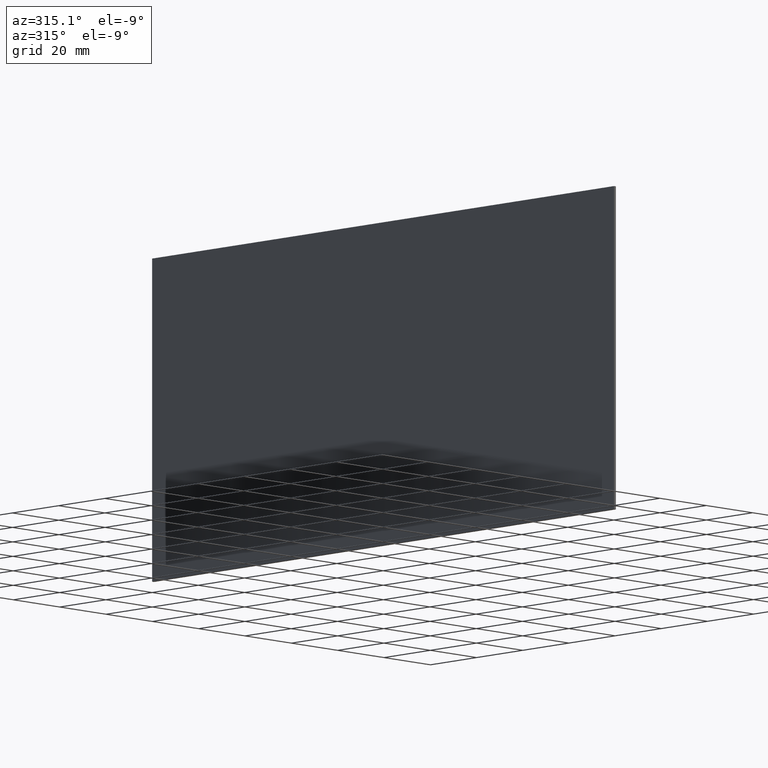
[diagram: clean part render]
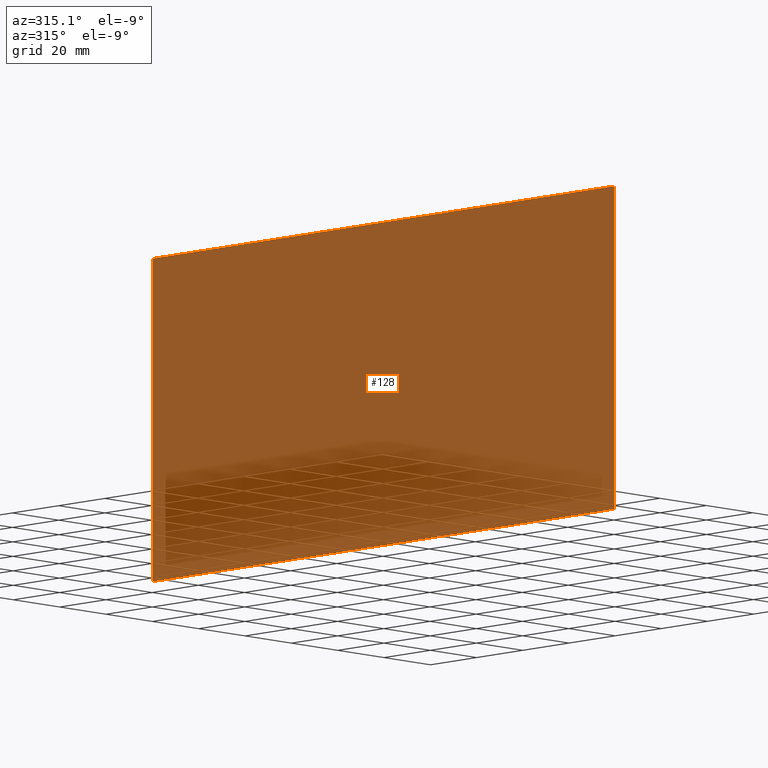
[diagram: same view with one face highlighted and labeled with its STEP entity id]
A machine part, auxiliary view. The second image highlights one B-rep face of the part: STEP entity #128.
In plain terms, the highlighted face is a freeform B-spline surface patch.
Its self-contained STEP definition (entity closure, byte-faithful):
#12=CARTESIAN_POINT('',(0.0,0.0,100.0));
#13=VERTEX_POINT('',#12);
#19=CARTESIAN_POINT('',(0.0,0.0,0.0));
#20=VERTEX_POINT('',#19);
#21=CARTESIAN_POINT('',(0.0,0.0,100.0));
#22=CARTESIAN_POINT('',(0.0,0.0,0.0));
#23=QUASI_UNIFORM_CURVE('',1,(#21,#22),.UNSPECIFIED.,.F.,.U.);
#24=EDGE_CURVE('',#13,#20,#23,.T.);
#48=CARTESIAN_POINT('',(0.0,200.0,100.0));
#49=VERTEX_POINT('',#48);
#62=CARTESIAN_POINT('',(0.0,200.0,0.0));
#63=VERTEX_POINT('',#62);
#69=CARTESIAN_POINT('',(0.0,200.0,100.0));
#70=CARTESIAN_POINT('',(0.0,200.0,0.0));
#71=QUASI_UNIFORM_CURVE('',1,(#69,#70),.UNSPECIFIED.,.F.,.U.);
#72=EDGE_CURVE('',#49,#63,#71,.T.);
#103=CARTESIAN_POINT('',(0.0,200.0,0.0));
#104=CARTESIAN_POINT('',(0.0,0.0,0.0));
#105=QUASI_UNIFORM_CURVE('',1,(#103,#104),.UNSPECIFIED.,.F.,.U.);
#106=EDGE_CURVE('',#63,#20,#105,.T.);
#113=CARTESIAN_POINT('',(0.0,-9.989999612361194,-4.994999806180604));
#114=CARTESIAN_POINT('',(0.0,-9.989999612361194,104.995002488389600));
#115=CARTESIAN_POINT('',(0.0,209.990004976779200,-4.994999806180604));
#116=CARTESIAN_POINT('',(0.0,209.990004976779200,104.995002488389600));
#117=B_SPLINE_SURFACE_WITH_KNOTS('',1,1,((#113,#115),(#114,#116)),.UNSPECIFIED.,.F.,.F.,.U.,(2,2),(2,2),(0.0,109.990002294570200),(0.0,219.980004589140410),.UNSPECIFIED.);
#118=ORIENTED_EDGE('',*,*,#24,.F.);
#119=CARTESIAN_POINT('',(0.0,200.0,100.0));
#120=CARTESIAN_POINT('',(0.0,0.0,100.0));
#121=QUASI_UNIFORM_CURVE('',1,(#119,#120),.UNSPECIFIED.,.F.,.U.);
#122=EDGE_CURVE('',#49,#13,#121,.T.);
#123=ORIENTED_EDGE('',*,*,#122,.F.);
#124=ORIENTED_EDGE('',*,*,#72,.T.);
#125=ORIENTED_EDGE('',*,*,#106,.T.);
#126=EDGE_LOOP('',(#118,#123,#124,#125));
#127=FACE_OUTER_BOUND('',#126,.T.);
#128=ADVANCED_FACE('',(#127),#117,.T.);